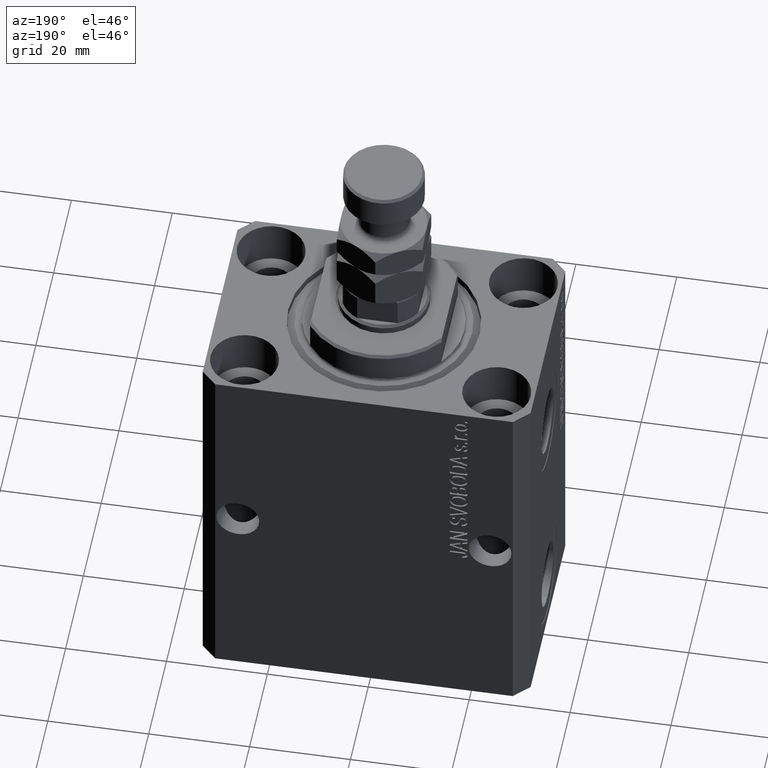
[diagram: clean part render]
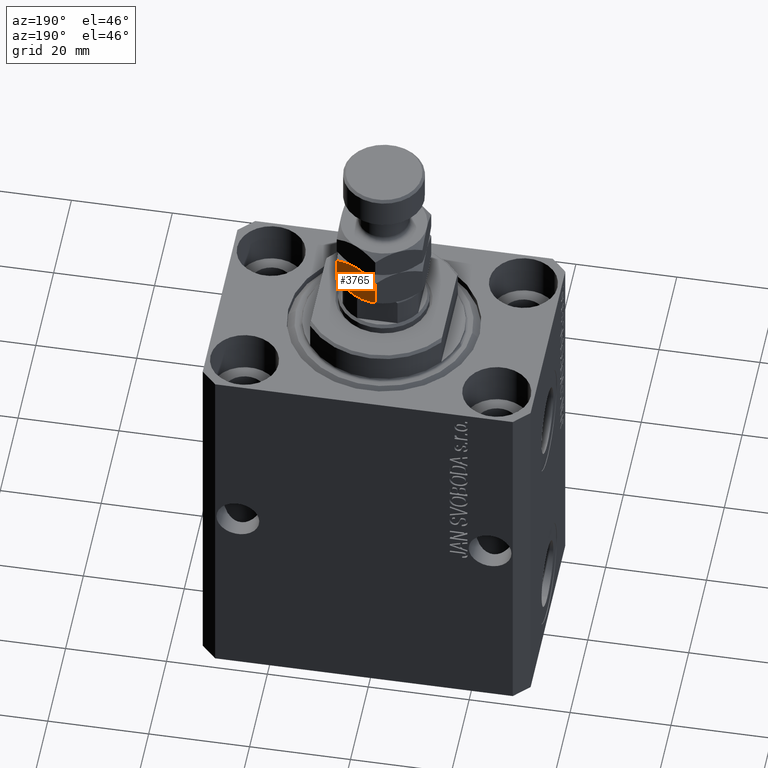
[diagram: same view with one face highlighted and labeled with its STEP entity id]
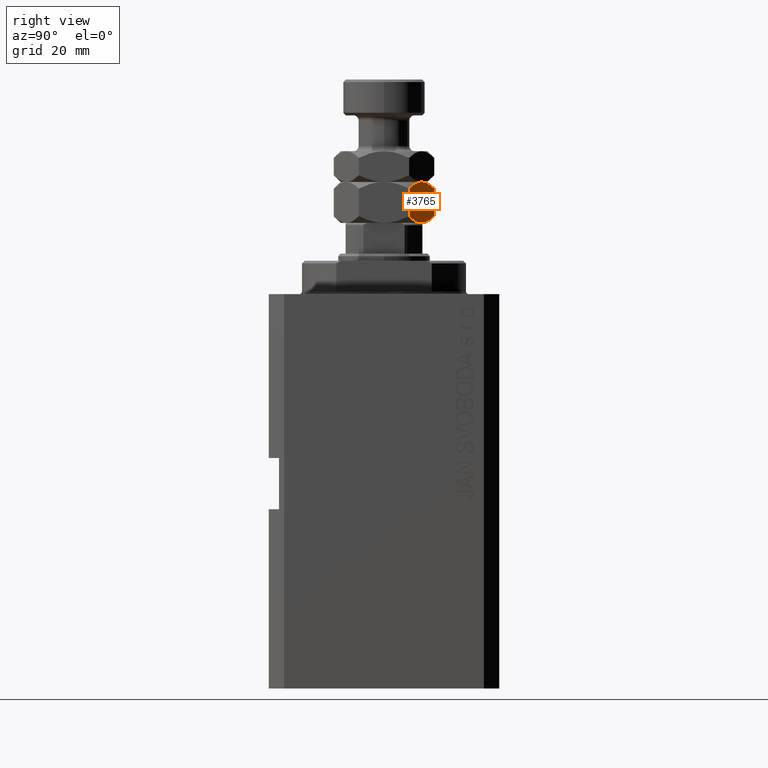
[diagram: same view with one face highlighted and labeled with its STEP entity id]
A machine part, auxiliary view. The second image highlights one B-rep face of the part: STEP entity #3765.
A second angle (right view) of the same face is appended — the face is thin or edge-on in the first view.
In plain terms, the highlighted planar face has unit normal (-0.5, -0.866, 0).
Its self-contained STEP definition (entity closure, byte-faithful):
#377 = CARTESIAN_POINT ( 'NONE',  ( 8.500000000000001776, 4.907477288111821601, 6.685045423776367457 ) ) ;
#1221 = CARTESIAN_POINT ( 'NONE',  ( 2.407069963478076779, 8.425232084851304037, 0.2536240893246513584 ) ) ;
#2139 = ORIENTED_EDGE ( 'NONE', *, *, #26397, .F. ) ;
#2399 = ORIENTED_EDGE ( 'NONE', *, *, #44489, .F. ) ;
#2689 = CARTESIAN_POINT ( 'NONE',  ( 4.249999999999996447, 7.361215932167731957, 0.000000000000000000 ) ) ;
#2775 = CARTESIAN_POINT ( 'NONE',  ( 0.6656893889372520468, 9.430618628324037189, 7.069381371676074721 ) ) ;
#3765 = ADVANCED_FACE ( 'NONE', ( #37060 ), #29149, .F. ) ;
#4284 = ORIENTED_EDGE ( 'NONE', *, *, #4896, .F. ) ;
#4315 = CARTESIAN_POINT ( 'NONE',  ( 5.000029324638990857, 6.928186299687297378, 7.966263250401637741 ) ) ;
#4470 = CARTESIAN_POINT ( 'NONE',  ( 4.249999999999998224, 7.361215932167725740, 8.000000000000000000 ) ) ;
#4896 = EDGE_CURVE ( 'NONE', #16657, #40587, #39385, .T. ) ;
#6859 = CARTESIAN_POINT ( 'NONE',  ( 8.500000000000001776, 4.907477288111821601, 1.314954576223634763 ) ) ;
#7262 = ORIENTED_EDGE ( 'NONE', *, *, #38373, .F. ) ;
#7446 = DIRECTION ( 'NONE',  ( -0.000000000000000000, -0.000000000000000000, -1.000000000000000000 ) ) ;
#7734 = CARTESIAN_POINT ( 'NONE',  ( 7.834310611062749174, 5.291813236011419619, 0.9306186283239317181 ) ) ;
#7893 = EDGE_CURVE ( 'NONE', #36077, #23851, #37529, .T. ) ;
#8399 = CARTESIAN_POINT ( 'NONE',  ( 1.960053746949402388E-16, 9.814954576223636096, 1.314954576223628546 ) ) ;
#8640 = CARTESIAN_POINT ( 'NONE',  ( 4.249999999999996447, 7.361215932167731957, 0.000000000000000000 ) ) ;
#9647 = B_SPLINE_CURVE_WITH_KNOTS ( 'NONE', 3,
 ( #44072, #37073, #18885, #1221, #29619, #30293, #16063, #33564 ),
 .UNSPECIFIED., .F., .F.,
 ( 4, 2, 2, 4 ),
 ( 2.544313836669062791E-07, 0.002543776790731949299, 0.003815537970406091776, 0.005087299150080233819 ),
 .UNSPECIFIED. ) ;
#9660 = B_SPLINE_CURVE_WITH_KNOTS ( 'NONE', 3,
 ( #44018, #12083, #40534, #40751, #2775, #30239 ),
 .UNSPECIFIED., .F., .F.,
 ( 4, 2, 4 ),
 ( 0.005087299150080239890, 0.007613005268011860047, 0.01013871138594348020 ),
 .UNSPECIFIED. ) ;
#11060 = CARTESIAN_POINT ( 'NONE',  ( 4.249999999999998224, 7.361215932167725740, 8.000000000000000000 ) ) ;
#11660 = DIRECTION ( 'NONE',  ( -0.4999999999999995559, -0.8660254037844389297, 0.000000000000000000 ) ) ;
#12083 = CARTESIAN_POINT ( 'NONE',  ( 3.510754653168325135, 7.788019432158174382, 8.000000000000005329 ) ) ;
#12550 = VERTEX_POINT ( 'NONE', #2689 ) ;
#12574 = CARTESIAN_POINT ( 'NONE',  ( 8.500000000000001776, 4.907477288111821601, 1.314954576223634763 ) ) ;
#12577 = DIRECTION ( 'NONE',  ( -0.000000000000000000, -0.000000000000000000, -1.000000000000000000 ) ) ;
#14698 = CARTESIAN_POINT ( 'NONE',  ( 5.715920793973914726, 6.514866167156221799, 0.1305202873832148891 ) ) ;
#16063 = CARTESIAN_POINT ( 'NONE',  ( 3.877770021349439045, 7.576123010542078262, -1.325606562452980031E-15 ) ) ;
#16657 = VERTEX_POINT ( 'NONE', #34213 ) ;
#17538 = ORIENTED_EDGE ( 'NONE', *, *, #30871, .F. ) ;
#18199 = CARTESIAN_POINT ( 'NONE',  ( 4.989245346831671313, 6.934412432177284202, -1.204480850995614688E-15 ) ) ;
#18280 = CARTESIAN_POINT ( 'NONE',  ( 8.500000000000001776, 4.907477288111821601, 6.685045423776367457 ) ) ;
#18885 = CARTESIAN_POINT ( 'NONE',  ( 1.348005192929855989, 9.036683415216572257, 0.6032092124201233752 ) ) ;
#21373 = VECTOR ( 'NONE', #7446, 1000.000000000000000 ) ;
#21992 = CARTESIAN_POINT ( 'NONE',  ( 7.833539178395722224, 5.292258622869394635, 7.069826758533938715 ) ) ;
#22603 = CARTESIAN_POINT ( 'NONE',  ( 8.500000000000001776, 4.907477288111821601, 8.000000000000000000 ) ) ;
#23851 = VERTEX_POINT ( 'NONE', #6859 ) ;
#24017 = CARTESIAN_POINT ( 'NONE',  ( 8.500000000000001776, 4.907477288111821601, 8.000000000000000000 ) ) ;
#25439 = CARTESIAN_POINT ( 'NONE',  ( 7.149107353189447345, 5.687415521394179940, 0.6009384127361230288 ) ) ;
#25532 = VERTEX_POINT ( 'NONE', #4470 ) ;
#26351 = DIRECTION ( 'NONE',  ( 0.8660254037844389297, -0.4999999999999995559, 0.000000000000000000 ) ) ;
#26397 = EDGE_CURVE ( 'NONE', #36077, #25532, #33825, .T. ) ;
#29010 = B_SPLINE_CURVE_WITH_KNOTS ( 'NONE', 3,
 ( #8640, #18199, #14698, #25439, #7734, #12574 ),
 .UNSPECIFIED., .F., .F.,
 ( 4, 2, 4 ),
 ( 0.005087299150080233819, 0.007613005268011856577, 0.01013871138594348020 ),
 .UNSPECIFIED. ) ;
#29149 = PLANE ( 'NONE',  #45175 ) ;
#29619 = CARTESIAN_POINT ( 'NONE',  ( 2.766281260884825954, 8.217841345597568292, 0.1608217079418317041 ) ) ;
#30239 = CARTESIAN_POINT ( 'NONE',  ( -2.175848833159079736E-16, 9.814954576223636096, 6.685045423776372786 ) ) ;
#30293 = CARTESIAN_POINT ( 'NONE',  ( 3.499970675361007810, 7.794245564648166535, 0.03373674959836577697 ) ) ;
#30871 = EDGE_CURVE ( 'NONE', #12550, #23851, #29010, .T. ) ;
#32492 = CARTESIAN_POINT ( 'NONE',  ( 4.622229978650560511, 7.146308853793381211, 8.000000000000003553 ) ) ;
#33564 = CARTESIAN_POINT ( 'NONE',  ( 4.249999999999996447, 7.361215932167731957, 0.000000000000000000 ) ) ;
#33825 = B_SPLINE_CURVE_WITH_KNOTS ( 'NONE', 3,
 ( #377, #21992, #42989, #35542, #46038, #4315, #32492, #11060 ),
 .UNSPECIFIED., .F., .F.,
 ( 4, 2, 2, 4 ),
 ( 2.544313836659951363E-07, 0.002543776790731952769, 0.003815537970406096113, 0.005087299150080239890 ),
 .UNSPECIFIED. ) ;
#34114 = VECTOR ( 'NONE', #12577, 1000.000000000000000 ) ;
#34213 = CARTESIAN_POINT ( 'NONE',  ( -2.175848833159079736E-16, 9.814954576223636096, 6.685045423776372786 ) ) ;
#35542 = CARTESIAN_POINT ( 'NONE',  ( 6.092930036521924109, 6.297199779484155435, 7.746375910675346255 ) ) ;
#36077 = VERTEX_POINT ( 'NONE', #18280 ) ;
#36101 = CARTESIAN_POINT ( 'NONE',  ( 0.000000000000000000, 9.814954576223636096, 8.000000000000000000 ) ) ;
#37060 = FACE_OUTER_BOUND ( 'NONE', #44631, .T. ) ;
#37073 = CARTESIAN_POINT ( 'NONE',  ( 0.6664608216042851030, 9.430173241466063061, 0.9301732414660577319 ) ) ;
#37529 = LINE ( 'NONE', #24017, #34114 ) ;
#38373 = EDGE_CURVE ( 'NONE', #40587, #12550, #9647, .T. ) ;
#39229 = ORIENTED_EDGE ( 'NONE', *, *, #7893, .T. ) ;
#39385 = LINE ( 'NONE', #36101, #21373 ) ;
#40534 = CARTESIAN_POINT ( 'NONE',  ( 2.784079206026084830, 8.207565697179239450, 7.869479712616790579 ) ) ;
#40587 = VERTEX_POINT ( 'NONE', #8399 ) ;
#40751 = CARTESIAN_POINT ( 'NONE',  ( 1.350892646810553321, 9.035016342941274203, 7.399061587263881634 ) ) ;
#42989 = CARTESIAN_POINT ( 'NONE',  ( 7.151994807070148674, 5.685748449118888992, 7.396790787579876181 ) ) ;
#44018 = CARTESIAN_POINT ( 'NONE',  ( 4.249999999999998224, 7.361215932167725740, 8.000000000000000000 ) ) ;
#44072 = CARTESIAN_POINT ( 'NONE',  ( 1.960053746949402388E-16, 9.814954576223636096, 1.314954576223628546 ) ) ;
#44489 = EDGE_CURVE ( 'NONE', #25532, #16657, #9660, .T. ) ;
#44631 = EDGE_LOOP ( 'NONE', ( #7262, #4284, #2399, #2139, #39229, #17538 ) ) ;
#45175 = AXIS2_PLACEMENT_3D ( 'NONE', #22603, #11660, #26351 ) ;
#46038 = CARTESIAN_POINT ( 'NONE',  ( 5.733718739115172269, 6.504590518737892957, 7.839178292058171849 ) ) ;